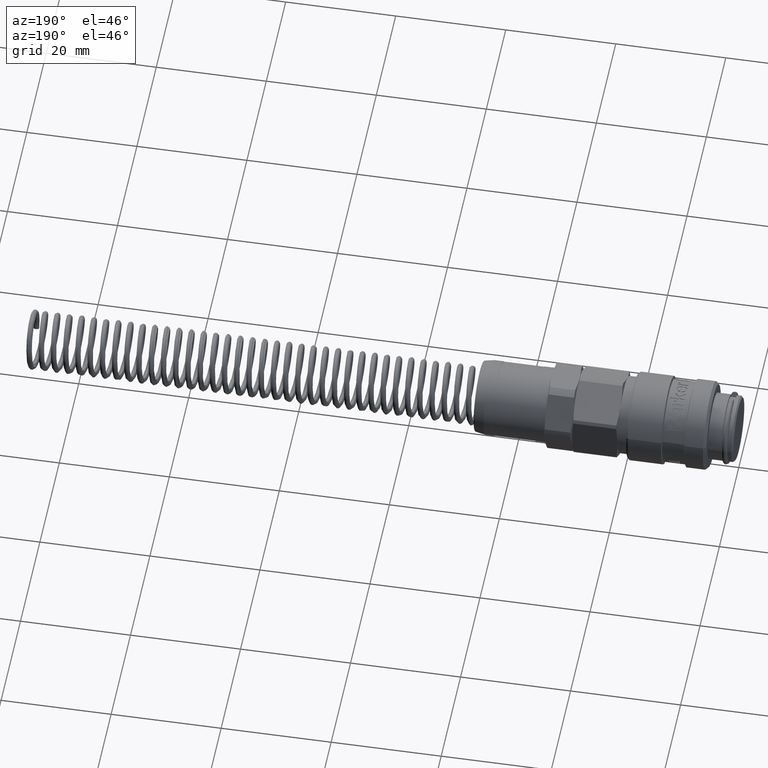
[diagram: clean part render]
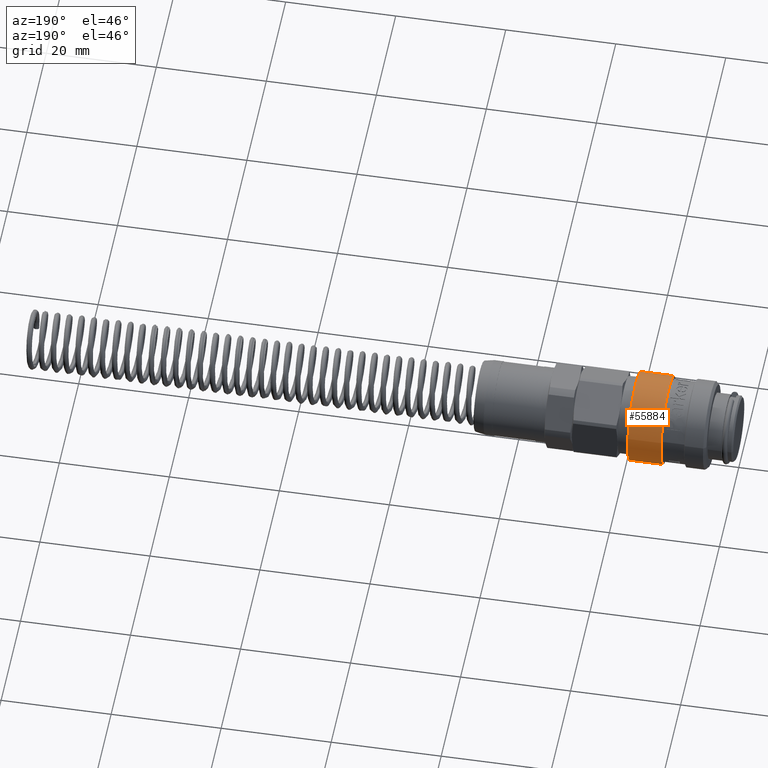
[diagram: same view with one face highlighted and labeled with its STEP entity id]
A machine part, auxiliary view. The second image highlights one B-rep face of the part: STEP entity #55884.
In plain terms, the highlighted cylindrical surface (bore or boss wall) has radius 8 mm, axis along (1, 0, 0).
Its self-contained STEP definition (entity closure, byte-faithful):
#55842=CARTESIAN_POINT('',(18.799999999999997,7.755687851516365,1.961964818706364));
#55843=VERTEX_POINT('',#55842);
#55844=CARTESIAN_POINT('',(18.799999999999997,0.0,0.0));
#55845=DIRECTION('',(1.0,0.0,0.0));
#55846=DIRECTION('',(0.0,-0.969460981439546,-0.245245602338295));
#55847=AXIS2_PLACEMENT_3D('',#55844,#55845,#55846);
#55848=CIRCLE('',#55847,8.0);
#55849=EDGE_CURVE('',#55843,#55843,#55848,.T.);
#55865=CARTESIAN_POINT('',(15.916987298107781,0.0,0.0));
#55866=DIRECTION('',(1.0,0.0,0.0));
#55867=DIRECTION('',(0.0,0.969460981439546,0.245245602338295));
#55868=AXIS2_PLACEMENT_3D('',#55865,#55866,#55867);
#55869=CYLINDRICAL_SURFACE('',#55868,8.0);
#55870=CARTESIAN_POINT('',(12.733974596215559,7.755687851516365,1.961964818706363));
#55871=VERTEX_POINT('',#55870);
#55872=CARTESIAN_POINT('',(12.733974596215559,0.0,0.0));
#55873=DIRECTION('',(1.0,0.0,0.0));
#55874=DIRECTION('',(0.0,0.969460981439546,0.245245602338295));
#55875=AXIS2_PLACEMENT_3D('',#55872,#55873,#55874);
#55876=CIRCLE('',#55875,8.0);
#55877=EDGE_CURVE('',#55871,#55871,#55876,.T.);
#55878=ORIENTED_EDGE('',*,*,#55877,.T.);
#55879=EDGE_LOOP('',(#55878));
#55880=FACE_OUTER_BOUND('',#55879,.T.);
#55881=ORIENTED_EDGE('',*,*,#55849,.F.);
#55882=EDGE_LOOP('',(#55881));
#55883=FACE_BOUND('',#55882,.T.);
#55884=ADVANCED_FACE('',(#55880,#55883),#55869,.T.);